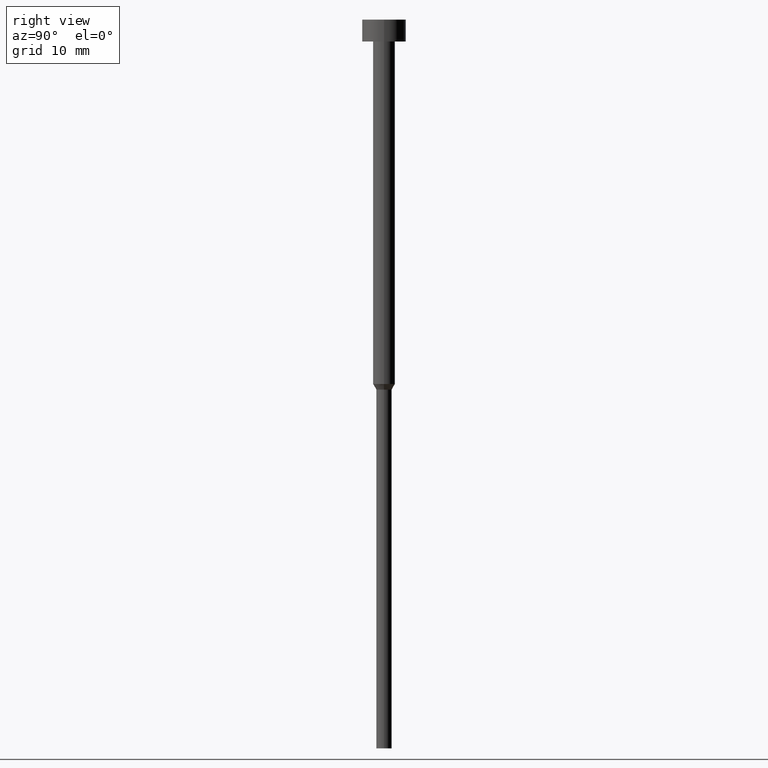
[diagram: clean part render]
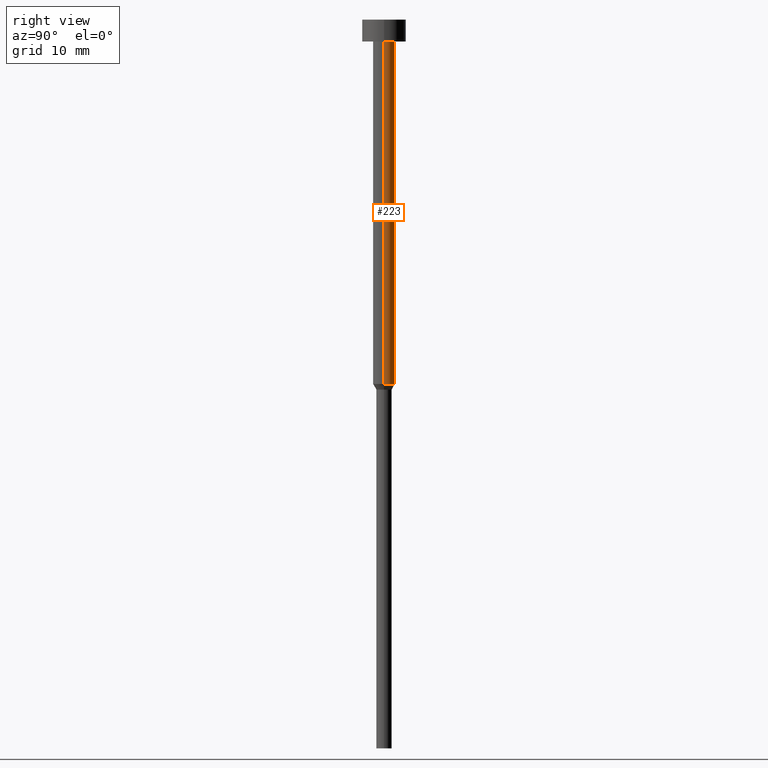
[diagram: same view with one face highlighted and labeled with its STEP entity id]
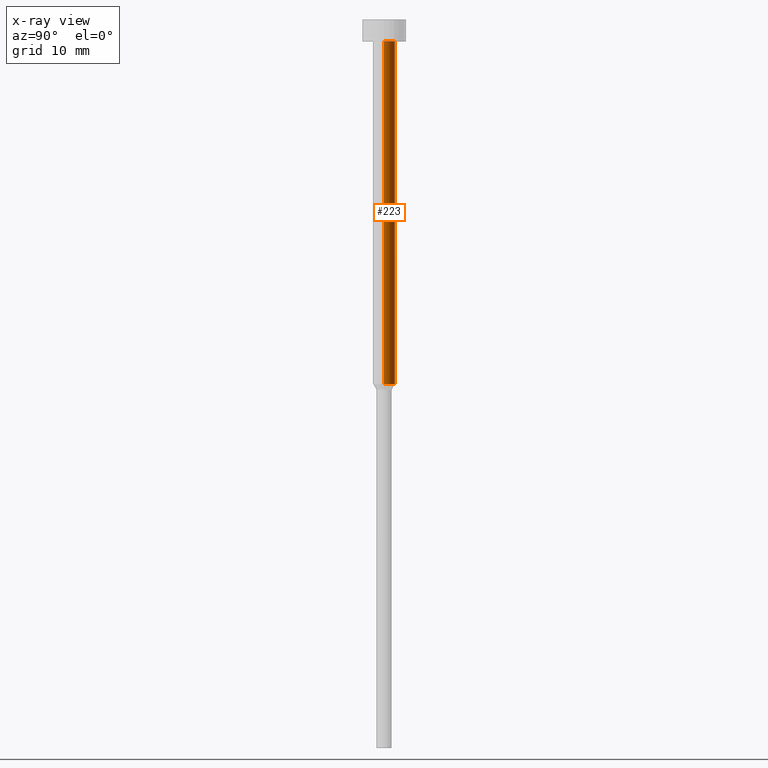
[diagram: x-ray of the same camera — body ghosted, the highlighted face saturated]
A machine part, right view. The second image highlights one B-rep face of the part: STEP entity #223.
The next image is the same camera in x-ray: the body ghosted, the highlighted face saturated — about 0% of this face is hidden behind the body in this view.
In plain terms, the highlighted cylindrical surface (edge-blend (fillet) strip) has radius 1.5 mm, axis along (-0, -0, 1).
Its self-contained STEP definition (entity closure, byte-faithful):
#5 = FACE_OUTER_BOUND ( 'NONE', #85, .T. ) ;
#11 = EDGE_CURVE ( 'NONE', #147, #13, #280, .T. ) ;
#13 = VERTEX_POINT ( 'NONE', #348 ) ;
#19 = DIRECTION ( 'NONE',  ( 1.000000000000000000, 0.000000000000000000, 0.000000000000000000 ) ) ;
#35 = CYLINDRICAL_SURFACE ( 'NONE', #244, 1.500000000000000000 ) ;
#37 = AXIS2_PLACEMENT_3D ( 'NONE', #80, #160, #19 ) ;
#42 = VERTEX_POINT ( 'NONE', #165 ) ;
#66 = DIRECTION ( 'NONE',  ( 1.000000000000000000, 0.000000000000000000, 0.000000000000000000 ) ) ;
#73 = DIRECTION ( 'NONE',  ( -0.000000000000000000, -0.000000000000000000, 1.000000000000000000 ) ) ;
#79 = DIRECTION ( 'NONE',  ( -0.000000000000000000, -0.000000000000000000, 1.000000000000000000 ) ) ;
#80 = CARTESIAN_POINT ( 'NONE',  ( 0.000000000000000000, 0.000000000000000000, -50.00000000000000000 ) ) ;
#85 = EDGE_LOOP ( 'NONE', ( #229, #259, #220, #334 ) ) ;
#130 = LINE ( 'NONE', #279, #167 ) ;
#133 = DIRECTION ( 'NONE',  ( 1.000000000000000000, 0.000000000000000000, 0.000000000000000000 ) ) ;
#147 = VERTEX_POINT ( 'NONE', #175 ) ;
#157 = VECTOR ( 'NONE', #79, 1000.000000000000000 ) ;
#160 = DIRECTION ( 'NONE',  ( -0.000000000000000000, -0.000000000000000000, 1.000000000000000000 ) ) ;
#165 = CARTESIAN_POINT ( 'NONE',  ( -1.500000000000000000, 1.836970198721029934E-16, -3.000000000000000888 ) ) ;
#166 = CARTESIAN_POINT ( 'NONE',  ( 1.500000000000000000, 0.000000000000000000, 0.000000000000000000 ) ) ;
#167 = VECTOR ( 'NONE', #309, 1000.000000000000000 ) ;
#175 = CARTESIAN_POINT ( 'NONE',  ( 1.500000000000000000, 0.000000000000000000, -50.00000000000000000 ) ) ;
#182 = CARTESIAN_POINT ( 'NONE',  ( 0.000000000000000000, 0.000000000000000000, 0.000000000000000000 ) ) ;
#190 = CARTESIAN_POINT ( 'NONE',  ( 0.000000000000000000, 0.000000000000000000, -3.000000000000000888 ) ) ;
#207 = LINE ( 'NONE', #166, #157 ) ;
#219 = DIRECTION ( 'NONE',  ( -0.000000000000000000, -0.000000000000000000, 1.000000000000000000 ) ) ;
#220 = ORIENTED_EDGE ( 'NONE', *, *, #273, .F. ) ;
#223 = ADVANCED_FACE ( 'NONE', ( #5 ), #35, .T. ) ;
#229 = ORIENTED_EDGE ( 'NONE', *, *, #11, .T. ) ;
#244 = AXIS2_PLACEMENT_3D ( 'NONE', #182, #73, #66 ) ;
#246 = EDGE_CURVE ( 'NONE', #13, #42, #130, .T. ) ;
#259 = ORIENTED_EDGE ( 'NONE', *, *, #246, .T. ) ;
#261 = AXIS2_PLACEMENT_3D ( 'NONE', #190, #219, #133 ) ;
#270 = EDGE_CURVE ( 'NONE', #147, #355, #207, .T. ) ;
#273 = EDGE_CURVE ( 'NONE', #355, #42, #289, .T. ) ;
#279 = CARTESIAN_POINT ( 'NONE',  ( -1.500000000000000000, 1.836970198721029934E-16, 0.000000000000000000 ) ) ;
#280 = CIRCLE ( 'NONE', #37, 1.500000000000000000 ) ;
#289 = CIRCLE ( 'NONE', #261, 1.500000000000000000 ) ;
#309 = DIRECTION ( 'NONE',  ( -0.000000000000000000, -0.000000000000000000, 1.000000000000000000 ) ) ;
#321 = CARTESIAN_POINT ( 'NONE',  ( 1.500000000000000000, 0.000000000000000000, -3.000000000000000888 ) ) ;
#334 = ORIENTED_EDGE ( 'NONE', *, *, #270, .F. ) ;
#348 = CARTESIAN_POINT ( 'NONE',  ( -1.500000000000000000, 1.836970198721029934E-16, -50.00000000000000000 ) ) ;
#355 = VERTEX_POINT ( 'NONE', #321 ) ;